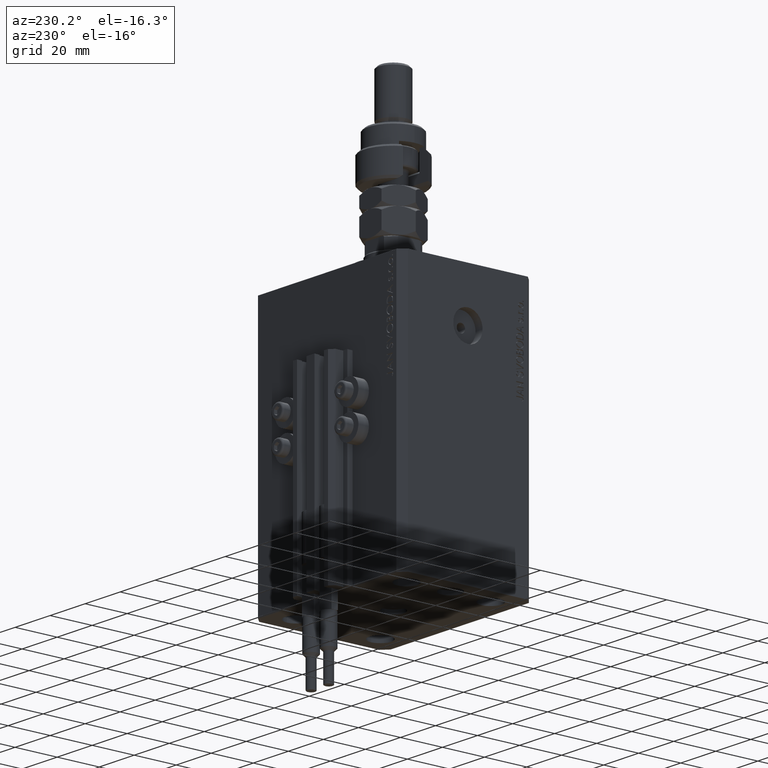
[diagram: clean part render]
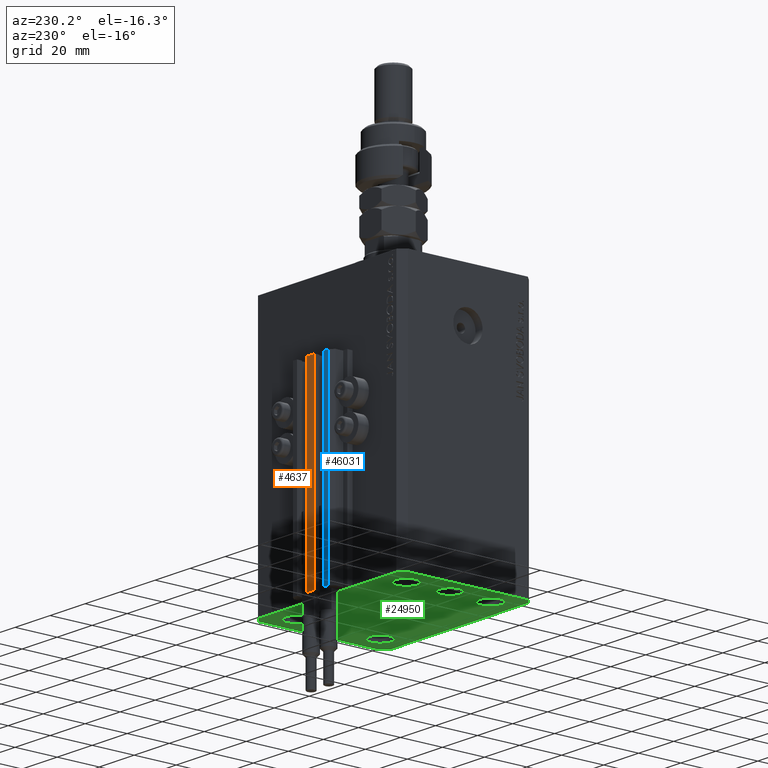
[diagram: same view with three faces highlighted in distinct colors, each labeled with its STEP entity id]
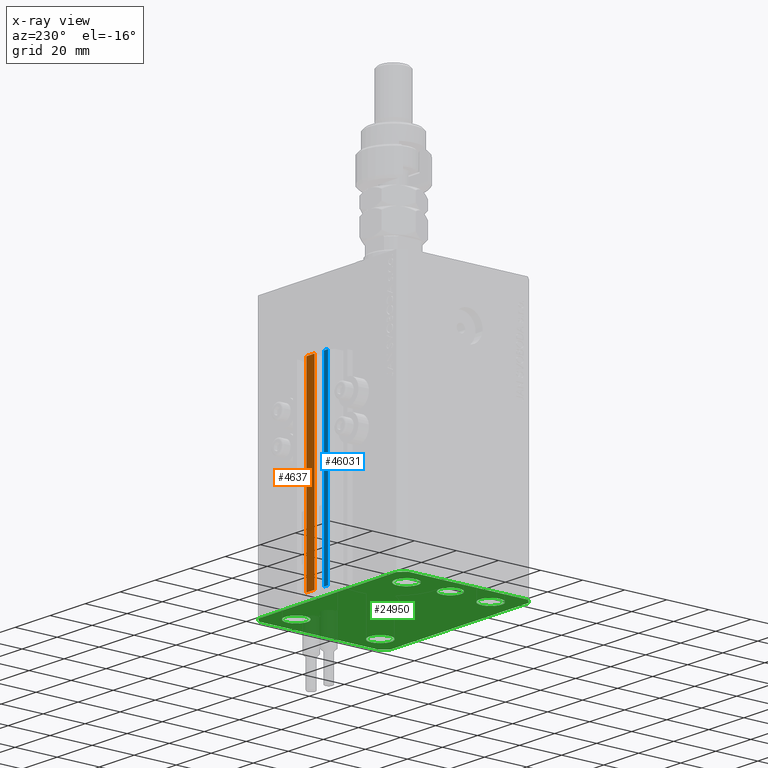
[diagram: x-ray of the same camera — body ghosted, the three highlighted faces saturated]
A machine part, auxiliary view with three faces highlighted in distinct colors.
The next image is the same camera in x-ray (body ghosted, the three faces saturated) — at least one of them is partly hidden behind the body in this view.
Their STEP definitions:

[orange] entity #4637 — the highlighted planar face has unit normal (0, -1, 0).
#921 = VECTOR ( 'NONE', #18375, 1000.000000000000000 ) ;
#1799 = CARTESIAN_POINT ( 'NONE',  ( 2.349999999999999645, 39.50000000000000711, -123.0000000000000000 ) ) ;
#2040 = LINE ( 'NONE', #1799, #29980 ) ;
#2486 = PLANE ( 'NONE',  #16127 ) ;
#4637 = ADVANCED_FACE ( 'NONE', ( #34170 ), #2486, .F. ) ;
#6864 = DIRECTION ( 'NONE',  ( 0.000000000000000000, -1.000000000000000000, 0.000000000000000000 ) ) ;
#7459 = CARTESIAN_POINT ( 'NONE',  ( 2.349999999999999645, 39.50000000000000711, -123.0000000000000000 ) ) ;
#13359 = VERTEX_POINT ( 'NONE', #7459 ) ;
#13580 = CARTESIAN_POINT ( 'NONE',  ( -2.350000000000003642, 39.50000000000000711, -123.0000000000000000 ) ) ;
#16127 = AXIS2_PLACEMENT_3D ( 'NONE', #13580, #6864, #49655 ) ;
#16456 = VERTEX_POINT ( 'NONE', #48090 ) ;
#16472 = CARTESIAN_POINT ( 'NONE',  ( 2.349999999999999645, 39.50000000000000711, -33.00000000000000000 ) ) ;
#18375 = DIRECTION ( 'NONE',  ( 1.000000000000000000, 0.000000000000000000, 0.000000000000000000 ) ) ;
#22483 = CARTESIAN_POINT ( 'NONE',  ( -2.350000000000003642, 39.50000000000000711, -33.00000000000000000 ) ) ;
#22999 = LINE ( 'NONE', #22483, #921 ) ;
#25717 = CARTESIAN_POINT ( 'NONE',  ( -2.350000000000003642, 39.50000000000000711, -123.0000000000000000 ) ) ;
#26468 = LINE ( 'NONE', #25717, #50045 ) ;
#26769 = EDGE_CURVE ( 'NONE', #44343, #13359, #26468, .T. ) ;
#29980 = VECTOR ( 'NONE', #38105, 1000.000000000000000 ) ;
#32144 = LINE ( 'NONE', #44011, #44591 ) ;
#32656 = DIRECTION ( 'NONE',  ( 0.000000000000000000, 0.000000000000000000, 1.000000000000000000 ) ) ;
#34170 = FACE_OUTER_BOUND ( 'NONE', #47766, .T. ) ;
#34195 = DIRECTION ( 'NONE',  ( 1.000000000000000000, 0.000000000000000000, 0.000000000000000000 ) ) ;
#34208 = VERTEX_POINT ( 'NONE', #16472 ) ;
#37614 = EDGE_CURVE ( 'NONE', #16456, #34208, #22999, .T. ) ;
#38105 = DIRECTION ( 'NONE',  ( 0.000000000000000000, 0.000000000000000000, 1.000000000000000000 ) ) ;
#43402 = EDGE_CURVE ( 'NONE', #44343, #16456, #32144, .T. ) ;
#44011 = CARTESIAN_POINT ( 'NONE',  ( -2.350000000000003642, 39.50000000000000711, -123.0000000000000000 ) ) ;
#44343 = VERTEX_POINT ( 'NONE', #47078 ) ;
#44525 = ORIENTED_EDGE ( 'NONE', *, *, #37614, .T. ) ;
#44591 = VECTOR ( 'NONE', #32656, 1000.000000000000000 ) ;
#46214 = ORIENTED_EDGE ( 'NONE', *, *, #49948, .F. ) ;
#46879 = ORIENTED_EDGE ( 'NONE', *, *, #26769, .F. ) ;
#47078 = CARTESIAN_POINT ( 'NONE',  ( -2.350000000000003642, 39.50000000000000711, -123.0000000000000000 ) ) ;
#47766 = EDGE_LOOP ( 'NONE', ( #44525, #46214, #46879, #48532 ) ) ;
#48090 = CARTESIAN_POINT ( 'NONE',  ( -2.350000000000003642, 39.50000000000000711, -33.00000000000000000 ) ) ;
#48532 = ORIENTED_EDGE ( 'NONE', *, *, #43402, .T. ) ;
#49655 = DIRECTION ( 'NONE',  ( 0.000000000000000000, -0.000000000000000000, -1.000000000000000000 ) ) ;
#49948 = EDGE_CURVE ( 'NONE', #13359, #34208, #2040, .T. ) ;
#50045 = VECTOR ( 'NONE', #34195, 1000.000000000000000 ) ;

[blue] entity #46031 — the highlighted planar face has unit normal (0, 1, 0).
#2310 = ORIENTED_EDGE ( 'NONE', *, *, #8675, .T. ) ;
#8644 = LINE ( 'NONE', #43941, #27796 ) ;
#8675 = EDGE_CURVE ( 'NONE', #42111, #25472, #8644, .T. ) ;
#9053 = EDGE_LOOP ( 'NONE', ( #20495, #47060, #2310, #38463 ) ) ;
#9272 = DIRECTION ( 'NONE',  ( 0.000000000000000000, 0.000000000000000000, 1.000000000000000000 ) ) ;
#10276 = CARTESIAN_POINT ( 'NONE',  ( -10.00000000000000000, 39.49999999999999289, -33.00000000000000000 ) ) ;
#11698 = VECTOR ( 'NONE', #35781, 1000.000000000000000 ) ;
#12881 = FACE_OUTER_BOUND ( 'NONE', #9053, .T. ) ;
#15696 = LINE ( 'NONE', #43282, #11698 ) ;
#19150 = EDGE_CURVE ( 'NONE', #25472, #49126, #15696, .T. ) ;
#19660 = CARTESIAN_POINT ( 'NONE',  ( -10.00000000000000000, 39.49999999999999289, -123.0000000000000000 ) ) ;
#20495 = ORIENTED_EDGE ( 'NONE', *, *, #33867, .F. ) ;
#24032 = CARTESIAN_POINT ( 'NONE',  ( -7.650000000000002132, 39.49999999999999289, -33.00000000000000000 ) ) ;
#24735 = CARTESIAN_POINT ( 'NONE',  ( -7.650000000000002132, 39.49999999999999289, -123.0000000000000000 ) ) ;
#25472 = VERTEX_POINT ( 'NONE', #19660 ) ;
#26691 = VECTOR ( 'NONE', #39884, 1000.000000000000000 ) ;
#27125 = LINE ( 'NONE', #24032, #29597 ) ;
#27633 = DIRECTION ( 'NONE',  ( -1.000000000000000000, 0.000000000000000000, 0.000000000000000000 ) ) ;
#27796 = VECTOR ( 'NONE', #40585, 1000.000000000000000 ) ;
#28274 = LINE ( 'NONE', #43507, #26691 ) ;
#28580 = PLANE ( 'NONE',  #38128 ) ;
#29597 = VECTOR ( 'NONE', #27633, 1000.000000000000000 ) ;
#33867 = EDGE_CURVE ( 'NONE', #46237, #49126, #27125, .T. ) ;
#34485 = CARTESIAN_POINT ( 'NONE',  ( -7.650000000000002132, 39.49999999999999289, -33.00000000000000000 ) ) ;
#35781 = DIRECTION ( 'NONE',  ( 0.000000000000000000, 0.000000000000000000, 1.000000000000000000 ) ) ;
#36832 = DIRECTION ( 'NONE',  ( 0.000000000000000000, 1.000000000000000000, -0.000000000000000000 ) ) ;
#37824 = CARTESIAN_POINT ( 'NONE',  ( -7.650000000000002132, 39.49999999999999289, -123.0000000000000000 ) ) ;
#38128 = AXIS2_PLACEMENT_3D ( 'NONE', #24735, #36832, #9272 ) ;
#38463 = ORIENTED_EDGE ( 'NONE', *, *, #19150, .T. ) ;
#39884 = DIRECTION ( 'NONE',  ( 0.000000000000000000, 0.000000000000000000, 1.000000000000000000 ) ) ;
#40585 = DIRECTION ( 'NONE',  ( -1.000000000000000000, 0.000000000000000000, 0.000000000000000000 ) ) ;
#42111 = VERTEX_POINT ( 'NONE', #37824 ) ;
#43282 = CARTESIAN_POINT ( 'NONE',  ( -10.00000000000000000, 39.49999999999999289, -123.0000000000000000 ) ) ;
#43507 = CARTESIAN_POINT ( 'NONE',  ( -7.650000000000002132, 39.49999999999999289, -123.0000000000000000 ) ) ;
#43941 = CARTESIAN_POINT ( 'NONE',  ( -7.650000000000002132, 39.49999999999999289, -123.0000000000000000 ) ) ;
#46031 = ADVANCED_FACE ( 'NONE', ( #12881 ), #28580, .T. ) ;
#46237 = VERTEX_POINT ( 'NONE', #34485 ) ;
#47060 = ORIENTED_EDGE ( 'NONE', *, *, #50139, .F. ) ;
#49126 = VERTEX_POINT ( 'NONE', #10276 ) ;
#50139 = EDGE_CURVE ( 'NONE', #42111, #46237, #28274, .T. ) ;

[green] entity #24950 — the highlighted planar face has unit normal (0, 0, 1).
#1222 = DIRECTION ( 'NONE',  ( -0.000000000000000000, -0.000000000000000000, -1.000000000000000000 ) ) ;
#1288 = EDGE_CURVE ( 'NONE', #11590, #30738, #28343, .T. ) ;
#1355 = VERTEX_POINT ( 'NONE', #9246 ) ;
#1640 = CARTESIAN_POINT ( 'NONE',  ( 0.000000000000000000, 0.000000000000000000, -123.0000000000000000 ) ) ;
#1644 = DIRECTION ( 'NONE',  ( -0.7071067811865471286, -0.7071067811865479058, 0.000000000000000000 ) ) ;
#1659 = EDGE_CURVE ( 'NONE', #9024, #5106, #32300, .T. ) ;
#2002 = CARTESIAN_POINT ( 'NONE',  ( 31.49999999999999289, -20.00000000000000355, -123.0000000000000000 ) ) ;
#2123 = LINE ( 'NONE', #9362, #12005 ) ;
#2126 = DIRECTION ( 'NONE',  ( 0.000000000000000000, 0.000000000000000000, -1.000000000000000000 ) ) ;
#2339 = AXIS2_PLACEMENT_3D ( 'NONE', #6038, #33113, #21511 ) ;
#2366 = EDGE_CURVE ( 'NONE', #31208, #27421, #11270, .T. ) ;
#2386 = CIRCLE ( 'NONE', #45181, 5.250000000000000888 ) ;
#2493 = VERTEX_POINT ( 'NONE', #32370 ) ;
#2578 = CARTESIAN_POINT ( 'NONE',  ( -31.49999999999999289, -20.00000000000000355, -123.0000000000000000 ) ) ;
#3632 = AXIS2_PLACEMENT_3D ( 'NONE', #28535, #44785, #9475 ) ;
#3837 = CARTESIAN_POINT ( 'NONE',  ( -37.50000000000000000, 0.000000000000000000, -123.0000000000000000 ) ) ;
#3998 = CARTESIAN_POINT ( 'NONE',  ( -42.50000000000000000, -28.50000000000000000, -123.0000000000000000 ) ) ;
#4448 = DIRECTION ( 'NONE',  ( -1.000000000000000000, 0.000000000000000000, 0.000000000000000000 ) ) ;
#4620 = CARTESIAN_POINT ( 'NONE',  ( -32.50000000000000000, 0.000000000000000000, -123.0000000000000000 ) ) ;
#4696 = CARTESIAN_POINT ( 'NONE',  ( -39.50000000000000711, -31.50000000000000000, -123.0000000000000000 ) ) ;
#4727 = CARTESIAN_POINT ( 'NONE',  ( -39.50000000000000711, 31.50000000000000000, -123.0000000000000000 ) ) ;
#4735 = CARTESIAN_POINT ( 'NONE',  ( -26.24999999999999289, -20.00000000000000355, -123.0000000000000000 ) ) ;
#5106 = VERTEX_POINT ( 'NONE', #49598 ) ;
#5538 = CARTESIAN_POINT ( 'NONE',  ( 5.000000000000000000, 6.123233995736765296E-16, -123.0000000000000000 ) ) ;
#6038 = CARTESIAN_POINT ( 'NONE',  ( 31.50000000000000000, 19.99999999999999289, -123.0000000000000000 ) ) ;
#6055 = DIRECTION ( 'NONE',  ( 1.000000000000000000, 0.000000000000000000, 0.000000000000000000 ) ) ;
#6218 = ORIENTED_EDGE ( 'NONE', *, *, #46818, .F. ) ;
#6456 = ORIENTED_EDGE ( 'NONE', *, *, #16828, .F. ) ;
#6531 = EDGE_LOOP ( 'NONE', ( #28613, #7535, #40927, #6456, #6218, #42431, #30093, #32652 ) ) ;
#6557 = CARTESIAN_POINT ( 'NONE',  ( 26.25000000000000355, 19.99999999999999289, -123.0000000000000000 ) ) ;
#6734 = CARTESIAN_POINT ( 'NONE',  ( -39.50000000000000711, 31.50000000000000000, -123.0000000000000000 ) ) ;
#7073 = CARTESIAN_POINT ( 'NONE',  ( -5.000000000000000000, 0.000000000000000000, -123.0000000000000000 ) ) ;
#7427 = EDGE_CURVE ( 'NONE', #30061, #49438, #14587, .T. ) ;
#7535 = ORIENTED_EDGE ( 'NONE', *, *, #2366, .F. ) ;
#8245 = CARTESIAN_POINT ( 'NONE',  ( 39.50000000000056843, 31.50000000000000000, -123.0000000000000000 ) ) ;
#8495 = CIRCLE ( 'NONE', #41400, 5.250000000000000888 ) ;
#8729 = VERTEX_POINT ( 'NONE', #5538 ) ;
#8943 = DIRECTION ( 'NONE',  ( 1.000000000000000000, 0.000000000000000000, 0.000000000000000000 ) ) ;
#9024 = VERTEX_POINT ( 'NONE', #6734 ) ;
#9246 = CARTESIAN_POINT ( 'NONE',  ( -27.50000000000000355, 6.123233995736762338E-16, -123.0000000000000000 ) ) ;
#9362 = CARTESIAN_POINT ( 'NONE',  ( 42.50000000000000711, -28.50000000000000355, -123.0000000000000000 ) ) ;
#9460 = CARTESIAN_POINT ( 'NONE',  ( 31.50000000000000000, 19.99999999999999289, -123.0000000000000000 ) ) ;
#9468 = EDGE_CURVE ( 'NONE', #43106, #47850, #38544, .T. ) ;
#9475 = DIRECTION ( 'NONE',  ( 1.000000000000000000, 0.000000000000000000, 0.000000000000000000 ) ) ;
#9683 = CARTESIAN_POINT ( 'NONE',  ( 42.50000000000051870, 28.49999999999995381, -123.0000000000000000 ) ) ;
#9930 = CARTESIAN_POINT ( 'NONE',  ( -31.50000000000000000, 19.99999999999999645, -123.0000000000000000 ) ) ;
#9993 = CIRCLE ( 'NONE', #33023, 5.249999999999997335 ) ;
#10581 = EDGE_LOOP ( 'NONE', ( #29825, #12880 ) ) ;
#10722 = DIRECTION ( 'NONE',  ( 0.000000000000000000, 0.000000000000000000, -1.000000000000000000 ) ) ;
#10949 = DIRECTION ( 'NONE',  ( -0.000000000000000000, -0.000000000000000000, -1.000000000000000000 ) ) ;
#11137 = EDGE_LOOP ( 'NONE', ( #14487, #39765 ) ) ;
#11150 = EDGE_CURVE ( 'NONE', #8729, #44649, #11430, .T. ) ;
#11270 = LINE ( 'NONE', #42722, #13598 ) ;
#11430 = CIRCLE ( 'NONE', #18016, 5.000000000000000000 ) ;
#11590 = VERTEX_POINT ( 'NONE', #43071 ) ;
#11592 = DIRECTION ( 'NONE',  ( 1.000000000000000000, 0.000000000000000000, -0.000000000000000000 ) ) ;
#12005 = VECTOR ( 'NONE', #28926, 1000.000000000000000 ) ;
#12144 = EDGE_LOOP ( 'NONE', ( #32192, #50311 ) ) ;
#12349 = EDGE_CURVE ( 'NONE', #49438, #30061, #41005, .T. ) ;
#12551 = DIRECTION ( 'NONE',  ( -0.000000000000000000, -0.000000000000000000, -1.000000000000000000 ) ) ;
#12880 = ORIENTED_EDGE ( 'NONE', *, *, #7427, .F. ) ;
#13598 = VECTOR ( 'NONE', #16654, 1000.000000000000114 ) ;
#13871 = VERTEX_POINT ( 'NONE', #30252 ) ;
#14221 = LINE ( 'NONE', #18088, #34176 ) ;
#14231 = DIRECTION ( 'NONE',  ( -1.000000000000000000, 0.000000000000000000, 0.000000000000000000 ) ) ;
#14293 = VECTOR ( 'NONE', #46046, 1000.000000000000000 ) ;
#14487 = ORIENTED_EDGE ( 'NONE', *, *, #35919, .F. ) ;
#14587 = CIRCLE ( 'NONE', #49185, 5.249999999999997335 ) ;
#15795 = CARTESIAN_POINT ( 'NONE',  ( 36.75000000000000000, 19.99999999999999289, -123.0000000000000000 ) ) ;
#16546 = DIRECTION ( 'NONE',  ( 1.000000000000000000, 0.000000000000000000, 0.000000000000000000 ) ) ;
#16654 = DIRECTION ( 'NONE',  ( -0.7071067811865356934, 0.7071067811865594521, 0.000000000000000000 ) ) ;
#16828 = EDGE_CURVE ( 'NONE', #25495, #33925, #14221, .T. ) ;
#17580 = EDGE_CURVE ( 'NONE', #33925, #31208, #2123, .T. ) ;
#18016 = AXIS2_PLACEMENT_3D ( 'NONE', #34430, #10722, #4448 ) ;
#18088 = CARTESIAN_POINT ( 'NONE',  ( 39.50000000000000711, -31.50000000000000000, -123.0000000000000000 ) ) ;
#18306 = DIRECTION ( 'NONE',  ( -0.000000000000000000, -0.000000000000000000, -1.000000000000000000 ) ) ;
#18316 = CIRCLE ( 'NONE', #20776, 4.999999999999997335 ) ;
#19334 = FACE_BOUND ( 'NONE', #10581, .T. ) ;
#19754 = DIRECTION ( 'NONE',  ( -1.000000000000000000, 0.000000000000000000, 0.000000000000000000 ) ) ;
#20639 = EDGE_CURVE ( 'NONE', #43974, #1355, #18316, .T. ) ;
#20769 = DIRECTION ( 'NONE',  ( -0.000000000000000000, -0.000000000000000000, -1.000000000000000000 ) ) ;
#20776 = AXIS2_PLACEMENT_3D ( 'NONE', #4620, #28317, #48451 ) ;
#20816 = CARTESIAN_POINT ( 'NONE',  ( -31.50000000000000000, 19.99999999999999645, -123.0000000000000000 ) ) ;
#20869 = EDGE_CURVE ( 'NONE', #30738, #11590, #9993, .T. ) ;
#20915 = CARTESIAN_POINT ( 'NONE',  ( 39.50000000000000711, -31.50000000000000000, -123.0000000000000000 ) ) ;
#21511 = DIRECTION ( 'NONE',  ( 1.000000000000000000, 0.000000000000000000, 0.000000000000000000 ) ) ;
#21734 = DIRECTION ( 'NONE',  ( 0.7071067811865471286, -0.7071067811865479058, 0.000000000000000000 ) ) ;
#22028 = AXIS2_PLACEMENT_3D ( 'NONE', #46571, #39081, #19754 ) ;
#23194 = FACE_BOUND ( 'NONE', #36871, .T. ) ;
#23393 = CIRCLE ( 'NONE', #3632, 5.250000000000000888 ) ;
#23453 = CARTESIAN_POINT ( 'NONE',  ( 0.000000000000000000, 0.000000000000000000, -123.0000000000000000 ) ) ;
#23978 = EDGE_CURVE ( 'NONE', #47850, #43106, #8495, .T. ) ;
#24950 = ADVANCED_FACE ( 'NONE', ( #30910, #42526, #23194, #50785, #19334, #43044, #31174 ), #43294, .F. ) ;
#24984 = VECTOR ( 'NONE', #14231, 1000.000000000000000 ) ;
#25186 = DIRECTION ( 'NONE',  ( 1.000000000000000000, 0.000000000000000000, 0.000000000000000000 ) ) ;
#25324 = CARTESIAN_POINT ( 'NONE',  ( -36.75000000000000000, 19.99999999999999645, -123.0000000000000000 ) ) ;
#25495 = VERTEX_POINT ( 'NONE', #20915 ) ;
#25871 = ORIENTED_EDGE ( 'NONE', *, *, #9468, .F. ) ;
#26081 = CARTESIAN_POINT ( 'NONE',  ( 39.50000000000056843, 31.50000000000000000, -123.0000000000000000 ) ) ;
#26361 = LINE ( 'NONE', #33331, #30582 ) ;
#27178 = VERTEX_POINT ( 'NONE', #4735 ) ;
#27421 = VERTEX_POINT ( 'NONE', #8245 ) ;
#27898 = LINE ( 'NONE', #4696, #34003 ) ;
#28317 = DIRECTION ( 'NONE',  ( 0.000000000000000000, 0.000000000000000000, -1.000000000000000000 ) ) ;
#28343 = CIRCLE ( 'NONE', #39905, 5.249999999999997335 ) ;
#28535 = CARTESIAN_POINT ( 'NONE',  ( -31.49999999999999289, -20.00000000000000355, -123.0000000000000000 ) ) ;
#28613 = ORIENTED_EDGE ( 'NONE', *, *, #45796, .F. ) ;
#28787 = DIRECTION ( 'NONE',  ( -0.000000000000000000, -0.000000000000000000, -1.000000000000000000 ) ) ;
#28926 = DIRECTION ( 'NONE',  ( 8.886653596232072440E-15, 1.000000000000000000, 0.000000000000000000 ) ) ;
#29814 = EDGE_CURVE ( 'NONE', #1355, #43974, #45925, .T. ) ;
#29825 = ORIENTED_EDGE ( 'NONE', *, *, #12349, .F. ) ;
#30061 = VERTEX_POINT ( 'NONE', #6557 ) ;
#30093 = ORIENTED_EDGE ( 'NONE', *, *, #47268, .F. ) ;
#30137 = DIRECTION ( 'NONE',  ( 1.000000000000000000, 0.000000000000000000, 0.000000000000000000 ) ) ;
#30252 = CARTESIAN_POINT ( 'NONE',  ( -39.50000000000000711, -31.50000000000000000, -123.0000000000000000 ) ) ;
#30296 = LINE ( 'NONE', #33162, #14293 ) ;
#30582 = VECTOR ( 'NONE', #21734, 1000.000000000000000 ) ;
#30738 = VERTEX_POINT ( 'NONE', #32484 ) ;
#30910 = FACE_BOUND ( 'NONE', #11137, .T. ) ;
#31174 = FACE_OUTER_BOUND ( 'NONE', #6531, .T. ) ;
#31208 = VERTEX_POINT ( 'NONE', #9683 ) ;
#31470 = ORIENTED_EDGE ( 'NONE', *, *, #29814, .F. ) ;
#31909 = EDGE_CURVE ( 'NONE', #27178, #2493, #2386, .T. ) ;
#32192 = ORIENTED_EDGE ( 'NONE', *, *, #1288, .F. ) ;
#32300 = LINE ( 'NONE', #4727, #46512 ) ;
#32370 = CARTESIAN_POINT ( 'NONE',  ( -36.74999999999999289, -20.00000000000000355, -123.0000000000000000 ) ) ;
#32484 = CARTESIAN_POINT ( 'NONE',  ( 26.24999999999999645, -20.00000000000000355, -123.0000000000000000 ) ) ;
#32652 = ORIENTED_EDGE ( 'NONE', *, *, #1659, .F. ) ;
#32916 = EDGE_LOOP ( 'NONE', ( #25871, #44372 ) ) ;
#33023 = AXIS2_PLACEMENT_3D ( 'NONE', #47867, #12551, #8943 ) ;
#33113 = DIRECTION ( 'NONE',  ( -0.000000000000000000, -0.000000000000000000, -1.000000000000000000 ) ) ;
#33162 = CARTESIAN_POINT ( 'NONE',  ( -42.50000000000000000, 28.50000000000000000, -123.0000000000000000 ) ) ;
#33187 = DIRECTION ( 'NONE',  ( 1.000000000000000000, 0.000000000000000000, 0.000000000000000000 ) ) ;
#33331 = CARTESIAN_POINT ( 'NONE',  ( -42.50000000000000000, -28.50000000000000000, -123.0000000000000000 ) ) ;
#33925 = VERTEX_POINT ( 'NONE', #42851 ) ;
#34003 = VECTOR ( 'NONE', #16546, 1000.000000000000000 ) ;
#34060 = LINE ( 'NONE', #26081, #24984 ) ;
#34176 = VECTOR ( 'NONE', #49536, 1000.000000000000000 ) ;
#34430 = CARTESIAN_POINT ( 'NONE',  ( 0.000000000000000000, 0.000000000000000000, -123.0000000000000000 ) ) ;
#35390 = CIRCLE ( 'NONE', #47764, 5.000000000000000000 ) ;
#35919 = EDGE_CURVE ( 'NONE', #44649, #8729, #35390, .T. ) ;
#36871 = EDGE_LOOP ( 'NONE', ( #48514, #45306 ) ) ;
#37423 = DIRECTION ( 'NONE',  ( -1.000000000000000000, 0.000000000000000000, 0.000000000000000000 ) ) ;
#38544 = CIRCLE ( 'NONE', #47607, 5.250000000000000888 ) ;
#39081 = DIRECTION ( 'NONE',  ( 0.000000000000000000, 0.000000000000000000, -1.000000000000000000 ) ) ;
#39765 = ORIENTED_EDGE ( 'NONE', *, *, #11150, .F. ) ;
#39791 = AXIS2_PLACEMENT_3D ( 'NONE', #23453, #46919, #11592 ) ;
#39905 = AXIS2_PLACEMENT_3D ( 'NONE', #2002, #10949, #33187 ) ;
#40927 = ORIENTED_EDGE ( 'NONE', *, *, #17580, .F. ) ;
#41005 = CIRCLE ( 'NONE', #2339, 5.249999999999997335 ) ;
#41400 = AXIS2_PLACEMENT_3D ( 'NONE', #9930, #20769, #6055 ) ;
#42422 = VERTEX_POINT ( 'NONE', #3998 ) ;
#42431 = ORIENTED_EDGE ( 'NONE', *, *, #42680, .F. ) ;
#42526 = FACE_BOUND ( 'NONE', #50842, .T. ) ;
#42680 = EDGE_CURVE ( 'NONE', #42422, #13871, #26361, .T. ) ;
#42722 = CARTESIAN_POINT ( 'NONE',  ( 42.50000000000051870, 28.49999999999995381, -123.0000000000000000 ) ) ;
#42851 = CARTESIAN_POINT ( 'NONE',  ( 42.50000000000000711, -28.50000000000000355, -123.0000000000000000 ) ) ;
#43044 = FACE_BOUND ( 'NONE', #32916, .T. ) ;
#43071 = CARTESIAN_POINT ( 'NONE',  ( 36.74999999999999289, -20.00000000000000355, -123.0000000000000000 ) ) ;
#43106 = VERTEX_POINT ( 'NONE', #44262 ) ;
#43294 = PLANE ( 'NONE',  #39791 ) ;
#43974 = VERTEX_POINT ( 'NONE', #3837 ) ;
#44262 = CARTESIAN_POINT ( 'NONE',  ( -26.25000000000000000, 19.99999999999999645, -123.0000000000000000 ) ) ;
#44372 = ORIENTED_EDGE ( 'NONE', *, *, #23978, .F. ) ;
#44649 = VERTEX_POINT ( 'NONE', #7073 ) ;
#44785 = DIRECTION ( 'NONE',  ( -0.000000000000000000, -0.000000000000000000, -1.000000000000000000 ) ) ;
#45181 = AXIS2_PLACEMENT_3D ( 'NONE', #2578, #18306, #30137 ) ;
#45306 = ORIENTED_EDGE ( 'NONE', *, *, #48493, .F. ) ;
#45796 = EDGE_CURVE ( 'NONE', #27421, #9024, #34060, .T. ) ;
#45925 = CIRCLE ( 'NONE', #22028, 4.999999999999997335 ) ;
#46046 = DIRECTION ( 'NONE',  ( 0.000000000000000000, -1.000000000000000000, 0.000000000000000000 ) ) ;
#46512 = VECTOR ( 'NONE', #1644, 1000.000000000000000 ) ;
#46571 = CARTESIAN_POINT ( 'NONE',  ( -32.50000000000000000, 0.000000000000000000, -123.0000000000000000 ) ) ;
#46818 = EDGE_CURVE ( 'NONE', #13871, #25495, #27898, .T. ) ;
#46919 = DIRECTION ( 'NONE',  ( 0.000000000000000000, 0.000000000000000000, 1.000000000000000000 ) ) ;
#47268 = EDGE_CURVE ( 'NONE', #5106, #42422, #30296, .T. ) ;
#47607 = AXIS2_PLACEMENT_3D ( 'NONE', #20816, #28787, #48411 ) ;
#47764 = AXIS2_PLACEMENT_3D ( 'NONE', #1640, #2126, #37423 ) ;
#47850 = VERTEX_POINT ( 'NONE', #25324 ) ;
#47867 = CARTESIAN_POINT ( 'NONE',  ( 31.49999999999999289, -20.00000000000000355, -123.0000000000000000 ) ) ;
#48411 = DIRECTION ( 'NONE',  ( 1.000000000000000000, 0.000000000000000000, 0.000000000000000000 ) ) ;
#48451 = DIRECTION ( 'NONE',  ( -1.000000000000000000, 0.000000000000000000, 0.000000000000000000 ) ) ;
#48493 = EDGE_CURVE ( 'NONE', #2493, #27178, #23393, .T. ) ;
#48514 = ORIENTED_EDGE ( 'NONE', *, *, #31909, .F. ) ;
#49185 = AXIS2_PLACEMENT_3D ( 'NONE', #9460, #1222, #25186 ) ;
#49438 = VERTEX_POINT ( 'NONE', #15795 ) ;
#49536 = DIRECTION ( 'NONE',  ( 0.7071067811865483499, 0.7071067811865466846, 0.000000000000000000 ) ) ;
#49598 = CARTESIAN_POINT ( 'NONE',  ( -42.50000000000000000, 28.50000000000000000, -123.0000000000000000 ) ) ;
#50171 = ORIENTED_EDGE ( 'NONE', *, *, #20639, .F. ) ;
#50311 = ORIENTED_EDGE ( 'NONE', *, *, #20869, .F. ) ;
#50785 = FACE_BOUND ( 'NONE', #12144, .T. ) ;
#50842 = EDGE_LOOP ( 'NONE', ( #50171, #31470 ) ) ;